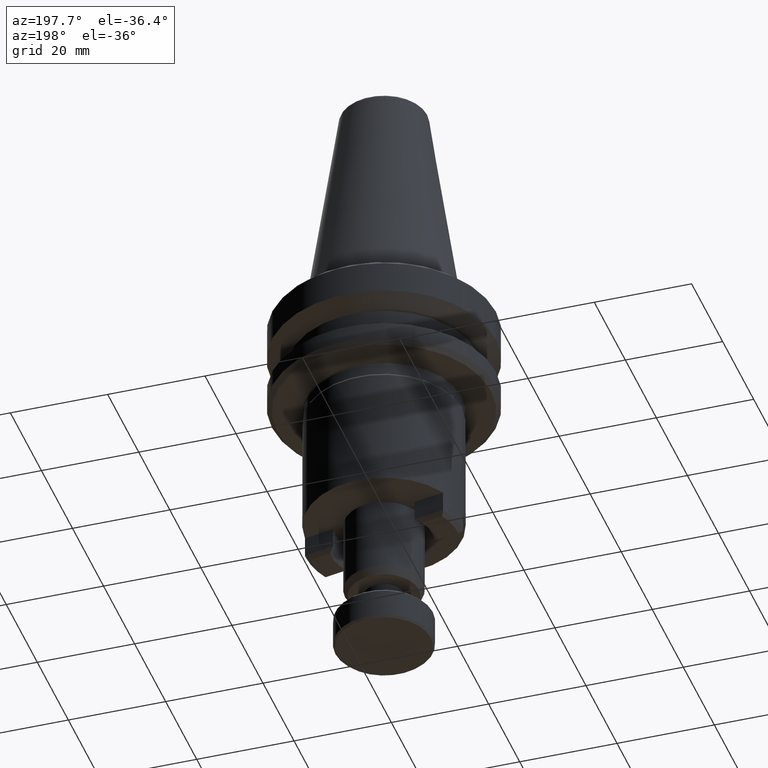
[diagram: clean part render]
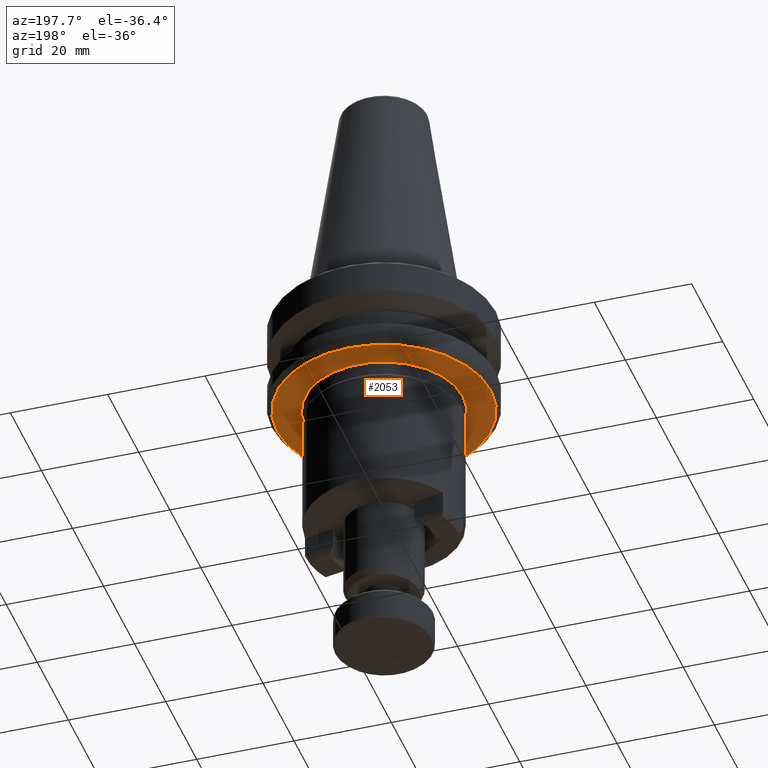
[diagram: same view with one face highlighted and labeled with its STEP entity id]
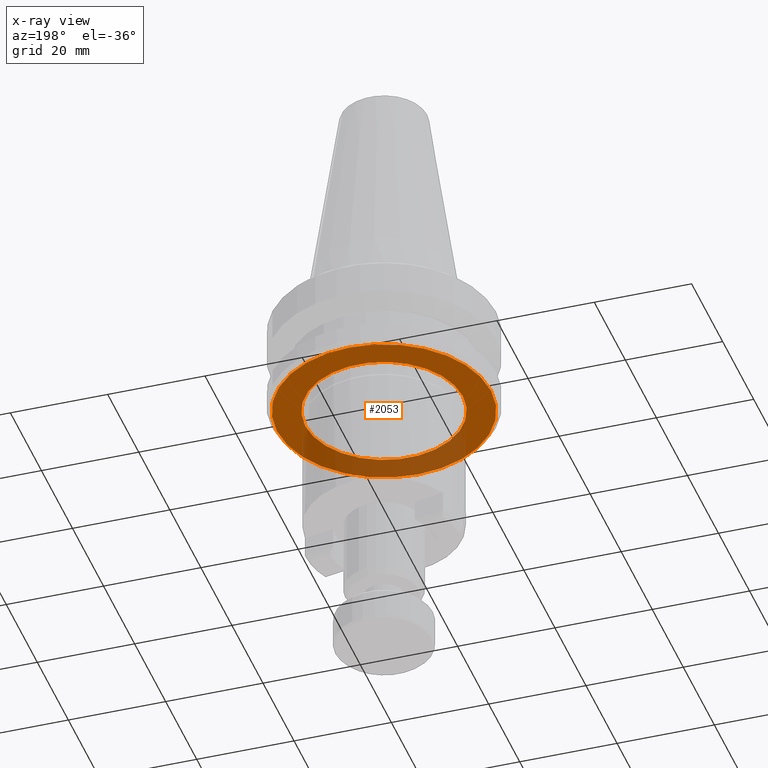
[diagram: x-ray of the same camera — body ghosted, the highlighted face saturated]
A machine part, auxiliary view. The second image highlights one B-rep face of the part: STEP entity #2053.
The next image is the same camera in x-ray: the body ghosted, the highlighted face saturated — about 31% of this face is hidden behind the body in this view.
In plain terms, the highlighted planar face has unit normal (0, -0, 1).
Its self-contained STEP definition (entity closure, byte-faithful):
#144 = ORIENTED_EDGE ( 'NONE', *, *, #1872, .F. ) ;
#154 = CARTESIAN_POINT ( 'NONE',  ( -5.371641434294360800, 1.568325594917041600, -10.93095528932899700 ) ) ;
#192 = VERTEX_POINT ( 'NONE', #1500 ) ;
#203 = CIRCLE ( 'NONE', #874, 22.00000000000013100 ) ;
#315 = DIRECTION ( 'NONE',  ( 1.000000000000000000, 0.0000000000000000000, 0.0000000000000000000 ) ) ;
#339 = FACE_BOUND ( 'NONE', #1865, .T. ) ;
#353 = ORIENTED_EDGE ( 'NONE', *, *, #1595, .T. ) ;
#420 = CARTESIAN_POINT ( 'NONE',  ( -5.371641434294360800, 1.568325594917041600, -10.93095528932899700 ) ) ;
#580 = DIRECTION ( 'NONE',  ( 1.000000000000000000, 0.0000000000000000000, 0.0000000000000000000 ) ) ;
#594 = CARTESIAN_POINT ( 'NONE',  ( -5.371641434294360800, 1.568325594917041600, -10.93095528932899700 ) ) ;
#692 = CARTESIAN_POINT ( 'NONE',  ( -5.371641434294360800, 17.76832559491703400, -10.93095528932899700 ) ) ;
#717 = FACE_OUTER_BOUND ( 'NONE', #1796, .T. ) ;
#724 = CIRCLE ( 'NONE', #770, 16.19999999999999200 ) ;
#747 = CARTESIAN_POINT ( 'NONE',  ( 10.82835856570563100, 1.568325594917041600, -10.93095528932899700 ) ) ;
#753 = DIRECTION ( 'NONE',  ( 1.000000000000000000, 0.0000000000000000000, 0.0000000000000000000 ) ) ;
#770 = AXIS2_PLACEMENT_3D ( 'NONE', #420, #1544, #580 ) ;
#851 = CARTESIAN_POINT ( 'NONE',  ( -5.371641434294360800, 1.568325594917041600, -10.93095528932899700 ) ) ;
#852 = ORIENTED_EDGE ( 'NONE', *, *, #1654, .F. ) ;
#853 = DIRECTION ( 'NONE',  ( 0.0000000000000000000, -0.0000000000000000000, 1.000000000000000000 ) ) ;
#874 = AXIS2_PLACEMENT_3D ( 'NONE', #154, #1295, #315 ) ;
#954 = AXIS2_PLACEMENT_3D ( 'NONE', #692, #853, #1980 ) ;
#1016 = DIRECTION ( 'NONE',  ( 1.000000000000000000, 0.0000000000000000000, 0.0000000000000000000 ) ) ;
#1047 = CIRCLE ( 'NONE', #1751, 22.00000000000013100 ) ;
#1119 = VERTEX_POINT ( 'NONE', #747 ) ;
#1232 = EDGE_CURVE ( 'NONE', #1119, #1957, #1945, .T. ) ;
#1295 = DIRECTION ( 'NONE',  ( -0.0000000000000000000, -0.0000000000000000000, 1.000000000000000000 ) ) ;
#1317 = ORIENTED_EDGE ( 'NONE', *, *, #1232, .T. ) ;
#1401 = CARTESIAN_POINT ( 'NONE',  ( 16.62835856570577100, 1.568325594917041600, -10.93095528932899700 ) ) ;
#1500 = CARTESIAN_POINT ( 'NONE',  ( -27.37164143429449200, 1.568325594917044300, -10.93095528932899700 ) ) ;
#1544 = DIRECTION ( 'NONE',  ( -0.0000000000000000000, -0.0000000000000000000, 1.000000000000000000 ) ) ;
#1595 = EDGE_CURVE ( 'NONE', #1957, #1119, #724, .T. ) ;
#1629 = VERTEX_POINT ( 'NONE', #1401 ) ;
#1632 = CARTESIAN_POINT ( 'NONE',  ( -21.57164143429435300, 1.568325594917043600, -10.93095528932899700 ) ) ;
#1654 = EDGE_CURVE ( 'NONE', #1629, #192, #1047, .T. ) ;
#1656 = PLANE ( 'NONE',  #954 ) ;
#1727 = DIRECTION ( 'NONE',  ( -0.0000000000000000000, -0.0000000000000000000, 1.000000000000000000 ) ) ;
#1751 = AXIS2_PLACEMENT_3D ( 'NONE', #594, #1727, #753 ) ;
#1796 = EDGE_LOOP ( 'NONE', ( #852, #144 ) ) ;
#1825 = AXIS2_PLACEMENT_3D ( 'NONE', #851, #1979, #1016 ) ;
#1865 = EDGE_LOOP ( 'NONE', ( #1317, #353 ) ) ;
#1872 = EDGE_CURVE ( 'NONE', #192, #1629, #203, .T. ) ;
#1945 = CIRCLE ( 'NONE', #1825, 16.19999999999999200 ) ;
#1957 = VERTEX_POINT ( 'NONE', #1632 ) ;
#1979 = DIRECTION ( 'NONE',  ( -0.0000000000000000000, -0.0000000000000000000, 1.000000000000000000 ) ) ;
#1980 = DIRECTION ( 'NONE',  ( 1.000000000000000000, 0.0000000000000000000, 0.0000000000000000000 ) ) ;
#2053 = ADVANCED_FACE ( 'NONE', ( #717, #339 ), #1656, .F. ) ;